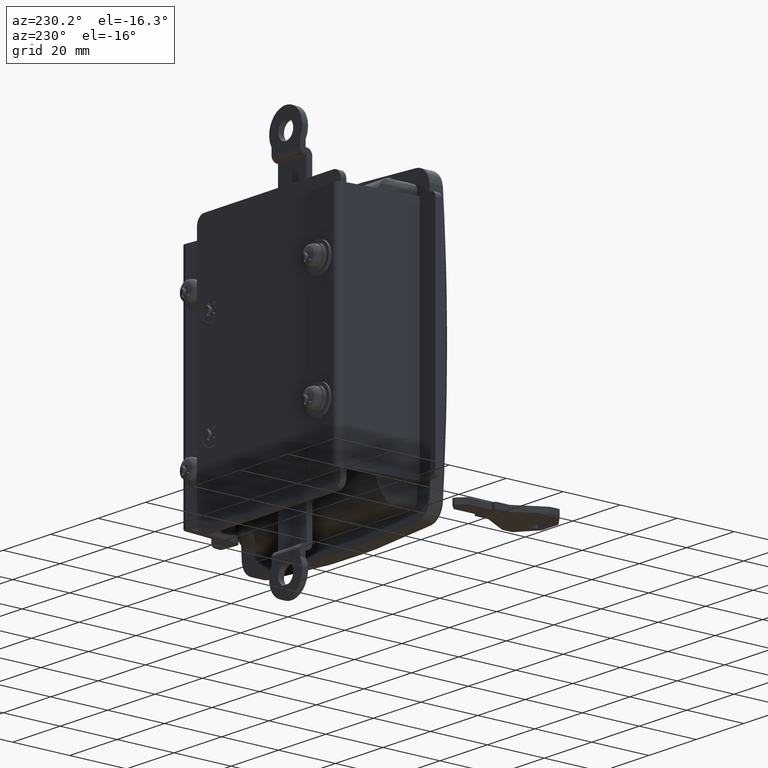
[diagram: clean part render]
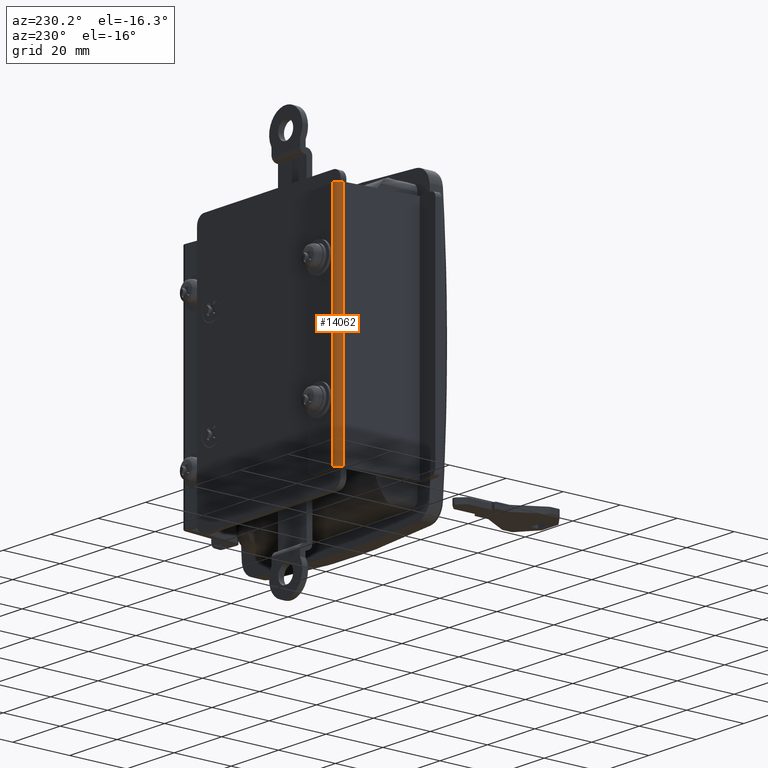
[diagram: same view with one face highlighted and labeled with its STEP entity id]
A machine part, auxiliary view. The second image highlights one B-rep face of the part: STEP entity #14062.
In plain terms, the highlighted face is a freeform B-spline surface patch.
Its self-contained STEP definition (entity closure, byte-faithful):
#13702=CARTESIAN_POINT('',(6.500388999999750,32.171862999999902,40.0));
#13703=VERTEX_POINT('',#13702);
#13709=CARTESIAN_POINT('',(4.313177999999850,30.378511999999951,40.0));
#13710=VERTEX_POINT('',#13709);
#13711=CARTESIAN_POINT('',(6.500388999999750,32.171862999999902,40.0));
#13712=CARTESIAN_POINT('',(5.675987607757037,32.253434106916004,40.0));
#13713=CARTESIAN_POINT('',(5.035368328442761,31.728173752438249,40.0));
#13714=CARTESIAN_POINT('',(4.394749049128485,31.202913397960486,40.0));
#13715=CARTESIAN_POINT('',(4.313177999999850,30.378511999999951,40.0));
#13723=(BOUNDED_CURVE()B_SPLINE_CURVE(2,(#13711,#13712,#13713,#13714,#13715),.UNSPECIFIED.,.F.,.U.)B_SPLINE_CURVE_WITH_KNOTS((3,2,3),(0.0,0.500000000000000,1.0),.UNSPECIFIED.)CURVE()GEOMETRIC_REPRESENTATION_ITEM()RATIONAL_B_SPLINE_CURVE((1.0,0.923879532511286,1.0,0.923879532511286,1.0))REPRESENTATION_ITEM(''));
#13724=EDGE_CURVE('',#13703,#13710,#13723,.T.);
#13791=CARTESIAN_POINT('',(4.313177999999850,30.378511999999951,-40.0));
#13792=VERTEX_POINT('',#13791);
#13798=CARTESIAN_POINT('',(6.500388999999750,32.171862999999902,-40.0));
#13799=VERTEX_POINT('',#13798);
#13800=CARTESIAN_POINT('',(6.500388999999750,32.171862999999902,-40.0));
#13801=CARTESIAN_POINT('',(5.675987607757037,32.253434106916004,-40.0));
#13802=CARTESIAN_POINT('',(5.035368328442761,31.728173752438249,-40.0));
#13803=CARTESIAN_POINT('',(4.394749049128485,31.202913397960486,-40.0));
#13804=CARTESIAN_POINT('',(4.313177999999850,30.378511999999951,-40.0));
#13812=(BOUNDED_CURVE()B_SPLINE_CURVE(2,(#13800,#13801,#13802,#13803,#13804),.UNSPECIFIED.,.F.,.U.)B_SPLINE_CURVE_WITH_KNOTS((3,2,3),(0.0,0.500000000000000,1.0),.UNSPECIFIED.)CURVE()GEOMETRIC_REPRESENTATION_ITEM()RATIONAL_B_SPLINE_CURVE((1.0,0.923879532511286,1.0,0.923879532511286,1.0))REPRESENTATION_ITEM(''));
#13813=EDGE_CURVE('',#13799,#13792,#13812,.T.);
#13865=CARTESIAN_POINT('',(6.500388999999750,32.171862999999902,-40.0));
#13866=CARTESIAN_POINT('',(6.500388999999750,32.171862999999902,40.0));
#13867=QUASI_UNIFORM_CURVE('',1,(#13865,#13866),.UNSPECIFIED.,.F.,.U.);
#13868=EDGE_CURVE('',#13799,#13703,#13867,.T.);
#14032=CARTESIAN_POINT('',(4.313177999999850,30.378511999999951,-40.0));
#14033=CARTESIAN_POINT('',(4.313177999999850,30.378511999999951,40.0));
#14034=QUASI_UNIFORM_CURVE('',1,(#14032,#14033),.UNSPECIFIED.,.F.,.U.);
#14035=EDGE_CURVE('',#13792,#13710,#14034,.T.);
#14042=CARTESIAN_POINT('',(4.306482311556979,30.291509729967061,-42.0));
#14043=CARTESIAN_POINT('',(4.306482311556979,30.291509729967061,42.049999999999990));
#14044=CARTESIAN_POINT('',(4.429683415840140,32.529614103792674,-42.000000000000014));
#14045=CARTESIAN_POINT('',(4.429683415840140,32.529614103792674,42.049999999999983));
#14046=CARTESIAN_POINT('',(6.639340447574185,32.153176190794731,-42.000000000000007));
#14047=CARTESIAN_POINT('',(6.639340447574185,32.153176190794731,42.049999999999997));
#14055=(BOUNDED_SURFACE()B_SPLINE_SURFACE(1,2,((#14042,#14044,#14046),(#14043,#14045,#14047)),.UNSPECIFIED.,.F.,.F.,.U.)B_SPLINE_SURFACE_WITH_KNOTS((2,2),(3,3),(0.0,84.049999999999997),(0.0,3.583485112952518),.UNSPECIFIED.)GEOMETRIC_REPRESENTATION_ITEM()RATIONAL_B_SPLINE_SURFACE(((1.0,0.664513895427558,0.996233567404413),(1.0,0.664513895427558,0.996233567404413)))REPRESENTATION_ITEM('')SURFACE());
#14056=ORIENTED_EDGE('',*,*,#13724,.F.);
#14057=ORIENTED_EDGE('',*,*,#13868,.F.);
#14058=ORIENTED_EDGE('',*,*,#13813,.T.);
#14059=ORIENTED_EDGE('',*,*,#14035,.T.);
#14060=EDGE_LOOP('',(#14056,#14057,#14058,#14059));
#14061=FACE_OUTER_BOUND('',#14060,.T.);
#14062=ADVANCED_FACE('',(#14061),#14055,.T.);